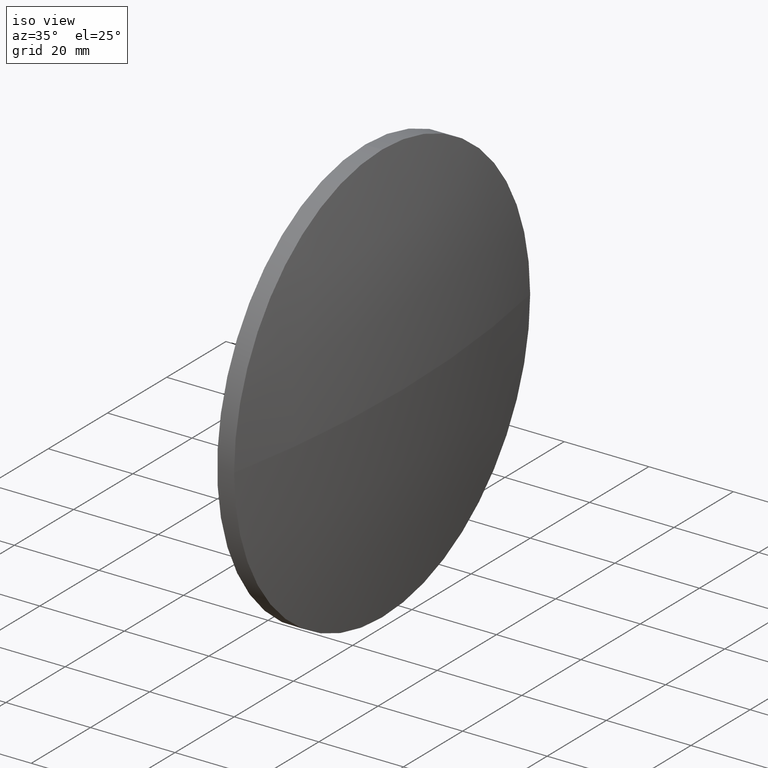
[diagram: clean part render]
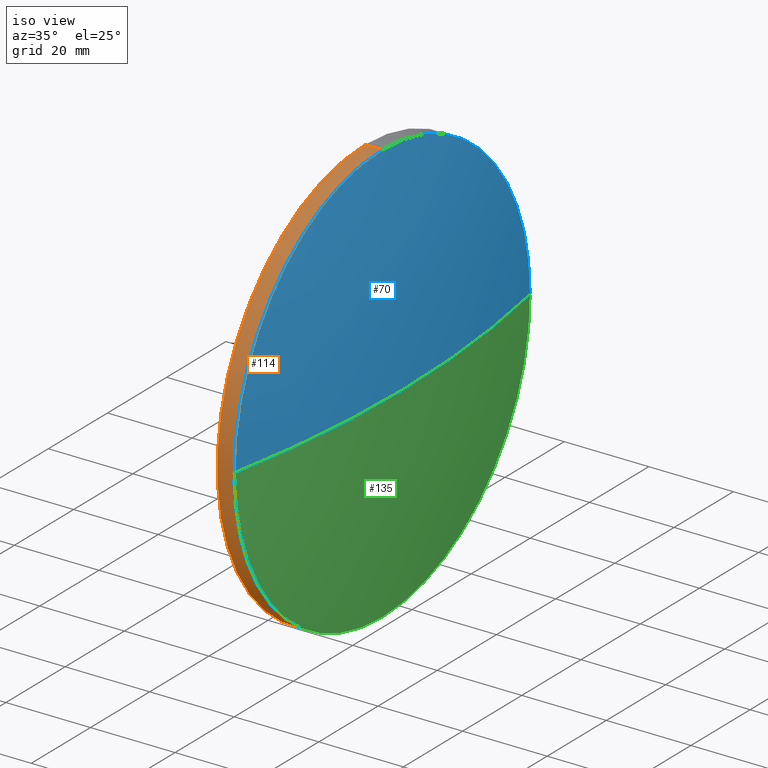
[diagram: same view with three faces highlighted in distinct colors, each labeled with its STEP entity id]
A machine part, iso view with three faces highlighted in distinct colors.
Their STEP definitions:

[orange] entity #114 — the highlighted cylindrical surface (partial cylindrical patch) has radius 50 mm, axis along (-1, -0, -0).
#2 = DIRECTION ( 'NONE',  ( -1.000000000000000000, -0.0000000000000000000, -0.0000000000000000000 ) ) ;
#7 = VERTEX_POINT ( 'NONE', #50 ) ;
#12 = AXIS2_PLACEMENT_3D ( 'NONE', #115, #81, #16 ) ;
#13 = DIRECTION ( 'NONE',  ( -1.000000000000000000, -0.0000000000000000000, -0.0000000000000000000 ) ) ;
#15 = CARTESIAN_POINT ( 'NONE',  ( 239.9389074292314500, 130.0418907599245100, 50.00000000000001400 ) ) ;
#16 = DIRECTION ( 'NONE',  ( 0.0000000000000000000, 0.0000000000000000000, 1.000000000000000000 ) ) ;
#22 = VECTOR ( 'NONE', #13, 1000.000000000000000 ) ;
#24 = AXIS2_PLACEMENT_3D ( 'NONE', #98, #134, #86 ) ;
#28 = CARTESIAN_POINT ( 'NONE',  ( 217.3311486608872700, 130.0418907599245100, -50.00000000000001400 ) ) ;
#29 = EDGE_CURVE ( 'NONE', #182, #157, #100, .T. ) ;
#32 = ORIENTED_EDGE ( 'NONE', *, *, #29, .T. ) ;
#38 = CIRCLE ( 'NONE', #24, 50.00000000000001400 ) ;
#39 = ORIENTED_EDGE ( 'NONE', *, *, #88, .T. ) ;
#40 = EDGE_CURVE ( 'NONE', #110, #7, #57, .T. ) ;
#41 = FACE_OUTER_BOUND ( 'NONE', #76, .T. ) ;
#48 = VECTOR ( 'NONE', #2, 1000.000000000000000 ) ;
#50 = CARTESIAN_POINT ( 'NONE',  ( 235.9389074292314500, 130.0418907599245100, 50.00000000000001400 ) ) ;
#51 = DIRECTION ( 'NONE',  ( -1.000000000000000000, -0.0000000000000000000, -0.0000000000000000000 ) ) ;
#53 = CIRCLE ( 'NONE', #91, 50.00000000000001400 ) ;
#55 = AXIS2_PLACEMENT_3D ( 'NONE', #93, #51, #77 ) ;
#57 = LINE ( 'NONE', #166, #22 ) ;
#63 = CARTESIAN_POINT ( 'NONE',  ( 235.9389074292314500, 130.0418907599245100, -50.00000000000001400 ) ) ;
#65 = ORIENTED_EDGE ( 'NONE', *, *, #108, .F. ) ;
#66 = CARTESIAN_POINT ( 'NONE',  ( 239.9389074292314500, 130.0418907599245100, 0.0000000000000000000 ) ) ;
#74 = ORIENTED_EDGE ( 'NONE', *, *, #40, .T. ) ;
#76 = EDGE_LOOP ( 'NONE', ( #129, #32, #39, #74, #65 ) ) ;
#77 = DIRECTION ( 'NONE',  ( 0.0000000000000000000, 0.0000000000000000000, 1.000000000000000000 ) ) ;
#81 = DIRECTION ( 'NONE',  ( -1.000000000000000000, -0.0000000000000000000, -0.0000000000000000000 ) ) ;
#86 = DIRECTION ( 'NONE',  ( 0.0000000000000000000, 0.0000000000000000000, 1.000000000000000000 ) ) ;
#88 = EDGE_CURVE ( 'NONE', #157, #110, #53, .T. ) ;
#91 = AXIS2_PLACEMENT_3D ( 'NONE', #66, #160, #133 ) ;
#93 = CARTESIAN_POINT ( 'NONE',  ( 239.9389074292314500, 130.0418907599245100, 0.0000000000000000000 ) ) ;
#95 = CARTESIAN_POINT ( 'NONE',  ( 239.9389074292314500, 80.04189075992455600, -6.123233995736760600E-015 ) ) ;
#98 = CARTESIAN_POINT ( 'NONE',  ( 235.9389074292314500, 130.0418907599245100, 0.0000000000000000000 ) ) ;
#100 = CIRCLE ( 'NONE', #55, 50.00000000000001400 ) ;
#108 = EDGE_CURVE ( 'NONE', #116, #7, #38, .T. ) ;
#110 = VERTEX_POINT ( 'NONE', #15 ) ;
#114 = ADVANCED_FACE ( 'NONE', ( #41 ), #144, .T. ) ;
#115 = CARTESIAN_POINT ( 'NONE',  ( 217.3311486608872700, 130.0418907599245100, 0.0000000000000000000 ) ) ;
#116 = VERTEX_POINT ( 'NONE', #63 ) ;
#129 = ORIENTED_EDGE ( 'NONE', *, *, #145, .F. ) ;
#133 = DIRECTION ( 'NONE',  ( 0.0000000000000000000, 0.0000000000000000000, 1.000000000000000000 ) ) ;
#134 = DIRECTION ( 'NONE',  ( -1.000000000000000000, -0.0000000000000000000, -0.0000000000000000000 ) ) ;
#141 = LINE ( 'NONE', #28, #48 ) ;
#144 = CYLINDRICAL_SURFACE ( 'NONE', #12, 50.00000000000001400 ) ;
#145 = EDGE_CURVE ( 'NONE', #182, #116, #141, .T. ) ;
#157 = VERTEX_POINT ( 'NONE', #95 ) ;
#160 = DIRECTION ( 'NONE',  ( -1.000000000000000000, -0.0000000000000000000, -0.0000000000000000000 ) ) ;
#166 = CARTESIAN_POINT ( 'NONE',  ( 217.3311486608872700, 130.0418907599245100, 50.00000000000001400 ) ) ;
#169 = CARTESIAN_POINT ( 'NONE',  ( 239.9389074292314500, 130.0418907599245100, -50.00000000000001400 ) ) ;
#182 = VERTEX_POINT ( 'NONE', #169 ) ;

[blue] entity #70 — the highlighted spherical surface has radius 258.069 mm.
#15 = CARTESIAN_POINT ( 'NONE',  ( 239.9389074292314500, 130.0418907599245100, 50.00000000000001400 ) ) ;
#19 = SPHERICAL_SURFACE ( 'NONE', #104, 258.0687218813920900 ) ;
#20 = EDGE_CURVE ( 'NONE', #107, #151, #60, .T. ) ;
#23 = CARTESIAN_POINT ( 'NONE',  ( 239.9389074292314500, 130.0418907599245100, 0.0000000000000000000 ) ) ;
#25 = DIRECTION ( 'NONE',  ( 0.0000000000000000000, 1.224646799147353200E-016, -1.000000000000000000 ) ) ;
#33 = AXIS2_PLACEMENT_3D ( 'NONE', #126, #34, #138 ) ;
#34 = DIRECTION ( 'NONE',  ( -0.0000000000000000000, 0.0000000000000000000, 1.000000000000000000 ) ) ;
#36 = CARTESIAN_POINT ( 'NONE',  ( 244.8289074292313800, 130.0418907599245400, 0.0000000000000000000 ) ) ;
#52 = CARTESIAN_POINT ( 'NONE',  ( -13.23981445216068700, 130.0418907599245100, 0.0000000000000000000 ) ) ;
#53 = CIRCLE ( 'NONE', #91, 50.00000000000001400 ) ;
#60 = CIRCLE ( 'NONE', #33, 258.0687218813920900 ) ;
#61 = DIRECTION ( 'NONE',  ( -0.0000000000000000000, 0.0000000000000000000, -1.000000000000000000 ) ) ;
#62 = CARTESIAN_POINT ( 'NONE',  ( -13.23981445216068700, 130.0418907599245100, 0.0000000000000000000 ) ) ;
#66 = CARTESIAN_POINT ( 'NONE',  ( 239.9389074292314500, 130.0418907599245100, 0.0000000000000000000 ) ) ;
#70 = ADVANCED_FACE ( 'NONE', ( #139 ), #19, .T. ) ;
#82 = ORIENTED_EDGE ( 'NONE', *, *, #97, .F. ) ;
#88 = EDGE_CURVE ( 'NONE', #157, #110, #53, .T. ) ;
#91 = AXIS2_PLACEMENT_3D ( 'NONE', #66, #160, #133 ) ;
#94 = EDGE_LOOP ( 'NONE', ( #148, #124, #82, #112 ) ) ;
#95 = CARTESIAN_POINT ( 'NONE',  ( 239.9389074292314500, 80.04189075992455600, -6.123233995736760600E-015 ) ) ;
#97 = EDGE_CURVE ( 'NONE', #110, #151, #130, .T. ) ;
#103 = CARTESIAN_POINT ( 'NONE',  ( 239.9389074292314500, 180.0418907599244300, 0.0000000000000000000 ) ) ;
#104 = AXIS2_PLACEMENT_3D ( 'NONE', #52, #61, #184 ) ;
#107 = VERTEX_POINT ( 'NONE', #36 ) ;
#110 = VERTEX_POINT ( 'NONE', #15 ) ;
#112 = ORIENTED_EDGE ( 'NONE', *, *, #88, .F. ) ;
#122 = CIRCLE ( 'NONE', #176, 258.0687218813920900 ) ;
#124 = ORIENTED_EDGE ( 'NONE', *, *, #20, .T. ) ;
#126 = CARTESIAN_POINT ( 'NONE',  ( -13.23981445216068700, 130.0418907599245100, 0.0000000000000000000 ) ) ;
#128 = DIRECTION ( 'NONE',  ( -1.000000000000000000, -0.0000000000000000000, -0.0000000000000000000 ) ) ;
#130 = CIRCLE ( 'NONE', #173, 50.00000000000001400 ) ;
#133 = DIRECTION ( 'NONE',  ( 0.0000000000000000000, 0.0000000000000000000, 1.000000000000000000 ) ) ;
#138 = DIRECTION ( 'NONE',  ( 1.000000000000000000, 0.0000000000000000000, 0.0000000000000000000 ) ) ;
#139 = FACE_OUTER_BOUND ( 'NONE', #94, .T. ) ;
#148 = ORIENTED_EDGE ( 'NONE', *, *, #186, .F. ) ;
#151 = VERTEX_POINT ( 'NONE', #103 ) ;
#156 = DIRECTION ( 'NONE',  ( 0.0000000000000000000, 1.000000000000000000, 1.224646799147353000E-016 ) ) ;
#157 = VERTEX_POINT ( 'NONE', #95 ) ;
#160 = DIRECTION ( 'NONE',  ( -1.000000000000000000, -0.0000000000000000000, -0.0000000000000000000 ) ) ;
#173 = AXIS2_PLACEMENT_3D ( 'NONE', #23, #128, #175 ) ;
#175 = DIRECTION ( 'NONE',  ( 0.0000000000000000000, 0.0000000000000000000, 1.000000000000000000 ) ) ;
#176 = AXIS2_PLACEMENT_3D ( 'NONE', #62, #25, #156 ) ;
#184 = DIRECTION ( 'NONE',  ( 0.0000000000000000000, 1.000000000000000000, 0.0000000000000000000 ) ) ;
#186 = EDGE_CURVE ( 'NONE', #107, #157, #122, .T. ) ;

[green] entity #135 — the highlighted spherical surface has radius 258.069 mm.
#1 = ORIENTED_EDGE ( 'NONE', *, *, #29, .F. ) ;
#4 = DIRECTION ( 'NONE',  ( -0.0000000000000000000, 0.0000000000000000000, -1.000000000000000000 ) ) ;
#20 = EDGE_CURVE ( 'NONE', #107, #151, #60, .T. ) ;
#25 = DIRECTION ( 'NONE',  ( 0.0000000000000000000, 1.224646799147353200E-016, -1.000000000000000000 ) ) ;
#27 = EDGE_LOOP ( 'NONE', ( #47, #35, #1, #44 ) ) ;
#29 = EDGE_CURVE ( 'NONE', #182, #157, #100, .T. ) ;
#33 = AXIS2_PLACEMENT_3D ( 'NONE', #126, #34, #138 ) ;
#34 = DIRECTION ( 'NONE',  ( -0.0000000000000000000, 0.0000000000000000000, 1.000000000000000000 ) ) ;
#35 = ORIENTED_EDGE ( 'NONE', *, *, #186, .T. ) ;
#36 = CARTESIAN_POINT ( 'NONE',  ( 244.8289074292313800, 130.0418907599245400, 0.0000000000000000000 ) ) ;
#44 = ORIENTED_EDGE ( 'NONE', *, *, #111, .F. ) ;
#47 = ORIENTED_EDGE ( 'NONE', *, *, #20, .F. ) ;
#51 = DIRECTION ( 'NONE',  ( -1.000000000000000000, -0.0000000000000000000, -0.0000000000000000000 ) ) ;
#54 = DIRECTION ( 'NONE',  ( 0.0000000000000000000, 1.000000000000000000, 0.0000000000000000000 ) ) ;
#55 = AXIS2_PLACEMENT_3D ( 'NONE', #93, #51, #77 ) ;
#56 = SPHERICAL_SURFACE ( 'NONE', #162, 258.0687218813920900 ) ;
#58 = CIRCLE ( 'NONE', #150, 50.00000000000001400 ) ;
#60 = CIRCLE ( 'NONE', #33, 258.0687218813920900 ) ;
#62 = CARTESIAN_POINT ( 'NONE',  ( -13.23981445216068700, 130.0418907599245100, 0.0000000000000000000 ) ) ;
#77 = DIRECTION ( 'NONE',  ( 0.0000000000000000000, 0.0000000000000000000, 1.000000000000000000 ) ) ;
#93 = CARTESIAN_POINT ( 'NONE',  ( 239.9389074292314500, 130.0418907599245100, 0.0000000000000000000 ) ) ;
#95 = CARTESIAN_POINT ( 'NONE',  ( 239.9389074292314500, 80.04189075992455600, -6.123233995736760600E-015 ) ) ;
#96 = FACE_OUTER_BOUND ( 'NONE', #27, .T. ) ;
#100 = CIRCLE ( 'NONE', #55, 50.00000000000001400 ) ;
#102 = CARTESIAN_POINT ( 'NONE',  ( 239.9389074292314500, 130.0418907599245100, 0.0000000000000000000 ) ) ;
#103 = CARTESIAN_POINT ( 'NONE',  ( 239.9389074292314500, 180.0418907599244300, 0.0000000000000000000 ) ) ;
#107 = VERTEX_POINT ( 'NONE', #36 ) ;
#109 = CARTESIAN_POINT ( 'NONE',  ( -13.23981445216068700, 130.0418907599245100, 0.0000000000000000000 ) ) ;
#111 = EDGE_CURVE ( 'NONE', #151, #182, #58, .T. ) ;
#122 = CIRCLE ( 'NONE', #176, 258.0687218813920900 ) ;
#126 = CARTESIAN_POINT ( 'NONE',  ( -13.23981445216068700, 130.0418907599245100, 0.0000000000000000000 ) ) ;
#135 = ADVANCED_FACE ( 'NONE', ( #96 ), #56, .T. ) ;
#138 = DIRECTION ( 'NONE',  ( 1.000000000000000000, 0.0000000000000000000, 0.0000000000000000000 ) ) ;
#140 = DIRECTION ( 'NONE',  ( -1.000000000000000000, -0.0000000000000000000, -0.0000000000000000000 ) ) ;
#150 = AXIS2_PLACEMENT_3D ( 'NONE', #102, #140, #161 ) ;
#151 = VERTEX_POINT ( 'NONE', #103 ) ;
#156 = DIRECTION ( 'NONE',  ( 0.0000000000000000000, 1.000000000000000000, 1.224646799147353000E-016 ) ) ;
#157 = VERTEX_POINT ( 'NONE', #95 ) ;
#161 = DIRECTION ( 'NONE',  ( 0.0000000000000000000, 0.0000000000000000000, 1.000000000000000000 ) ) ;
#162 = AXIS2_PLACEMENT_3D ( 'NONE', #109, #4, #54 ) ;
#169 = CARTESIAN_POINT ( 'NONE',  ( 239.9389074292314500, 130.0418907599245100, -50.00000000000001400 ) ) ;
#176 = AXIS2_PLACEMENT_3D ( 'NONE', #62, #25, #156 ) ;
#182 = VERTEX_POINT ( 'NONE', #169 ) ;
#186 = EDGE_CURVE ( 'NONE', #107, #157, #122, .T. ) ;